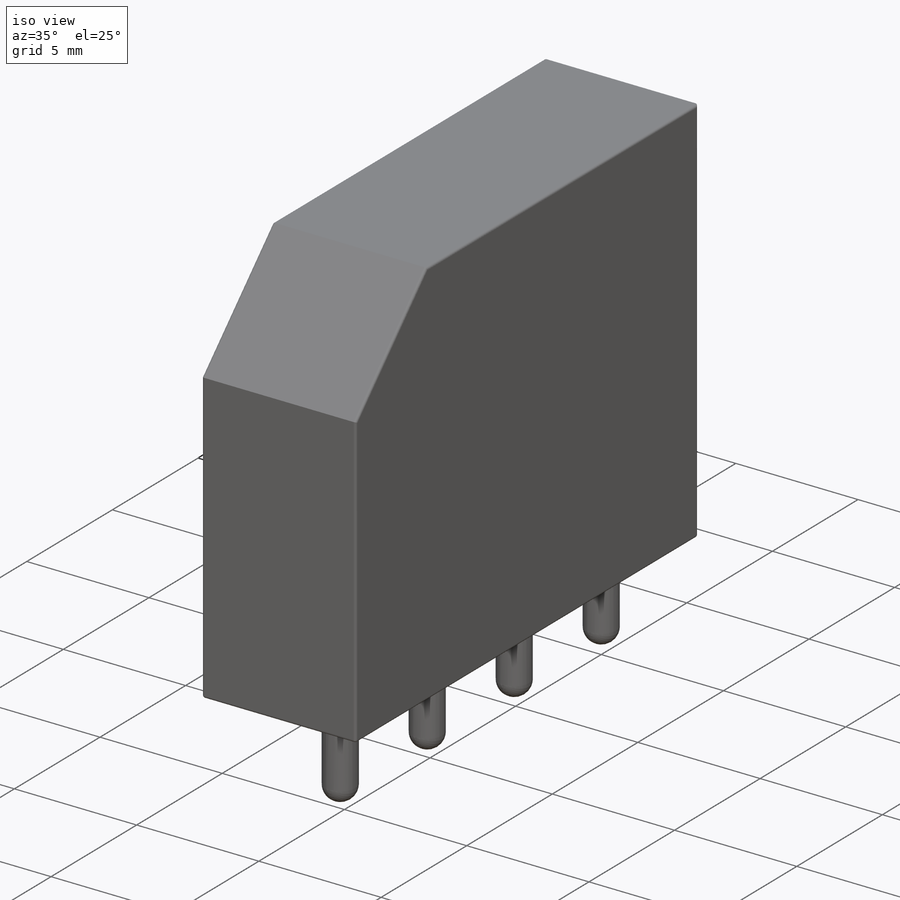
[diagram: iso view]
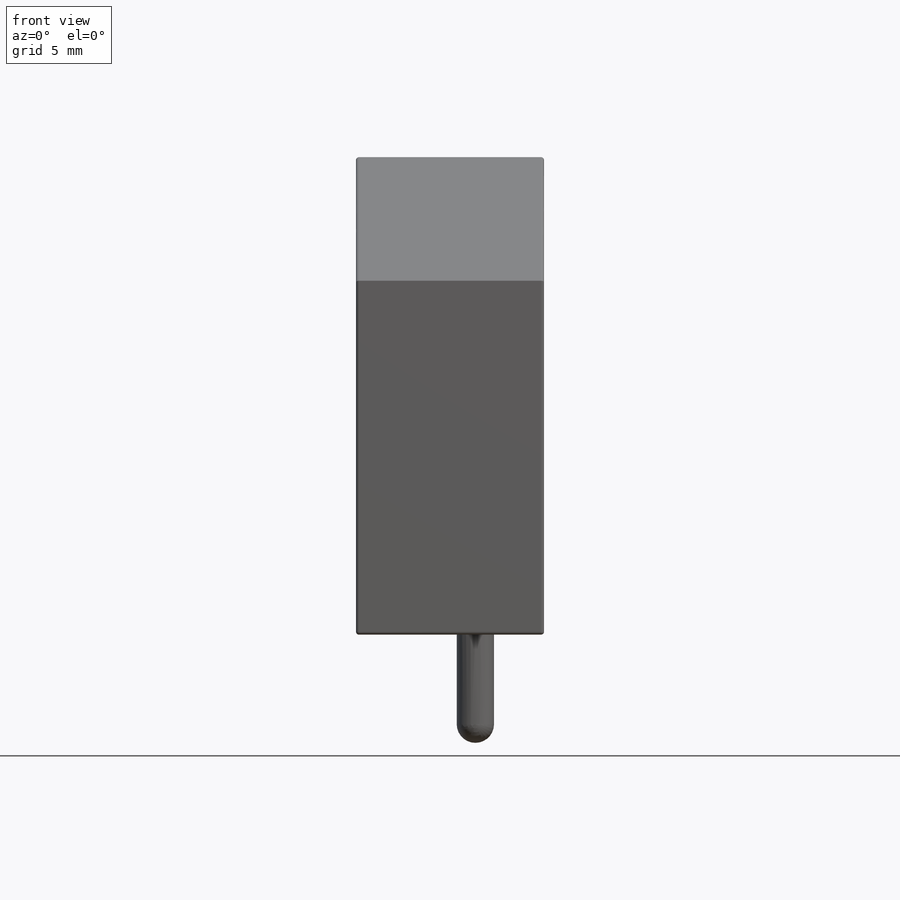
[diagram: front view]
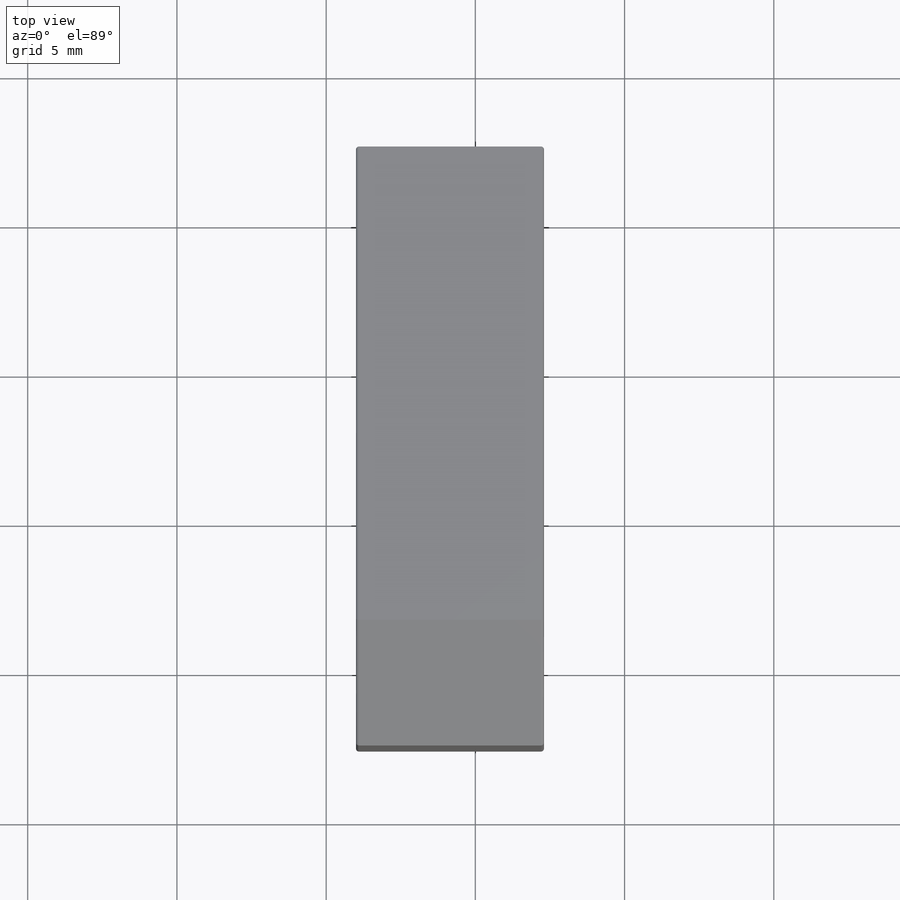
[diagram: top view]
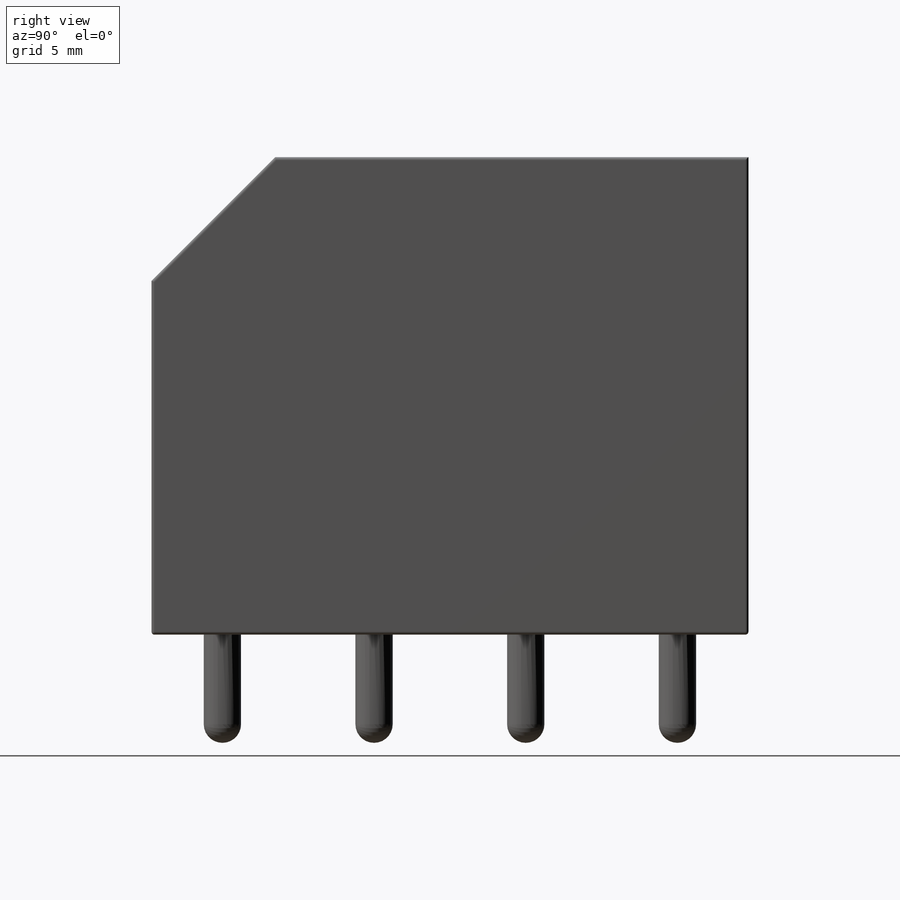
[diagram: right view]
SOLIDWORKS PART (.sldprt)
format: sldprt  version: not decoded by parser v0  size: 229,376 bytes
history: native  units: mm
features: sketch x4, extrude x2, material x1, dome x1, pattern_linear x1, cut_extrude x1, fillet x1, plane x1 (+12 scaffold rows collapsed)
feature tree (24):
  scaffold x12  (default folders/planes/origin — collapsed)
  material  "Material <not specified>"
  sketch  "Sketch1"  dims[c1.D1=2.38mm c1.D2=4.0mm c1.D3=20.0mm c1.D4=6.3mm c2.D1=2.38mm]
  extrude  "Base-Extrude"  Depth=16mm
  sketch  "Sketch2"  dims[c1.D1=1.25mm c1.D5=1.25mm c1.D3=1.25mm c1.D4=1.25mm c1.D2=4.46mm c2.D3=4.46mm c2.D4=4.46mm c2.D5=5.085mm c2.D2=5.082mm c3.D3=5.082mm c3.D4=5.082mm c3.D2=5.082mm c4.D3=5.082mm c4.D4=5.082mm]
  extrude  "Boss-Extrude1"  Depth=3mm
  dome  "Dome1"
  pattern_linear  "LPattern1"  Count1=4 Count2=1 Spacing1=5mm Spacing2=50mm
  sketch  "Sketch3"  dims[D1=~11.85858mm D2=15.8585mm D3=11.8586mm D4=15.8585mm]
  cut_extrude  "Cut-Extrude1"  [1 undecoded]
  fillet  "Fillet1"  Radius=0.1mm
  plane  "Board Plane"  Offset=0.3mm
  sketch  "Component_Outline"
decode coverage: 7 of 10 modeling features carry decoded parameters
note: ~ marks probable driven/reference dimensions
note: 1 parameter value undecoded
note: suppression state not decoded; provenance and decode notes live in map.json
